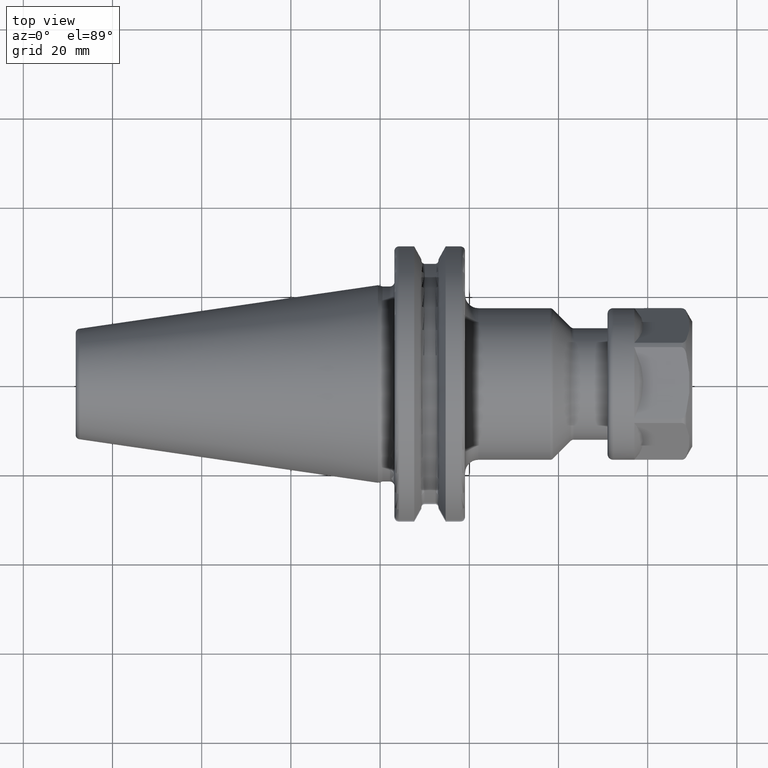
[diagram: clean part render]
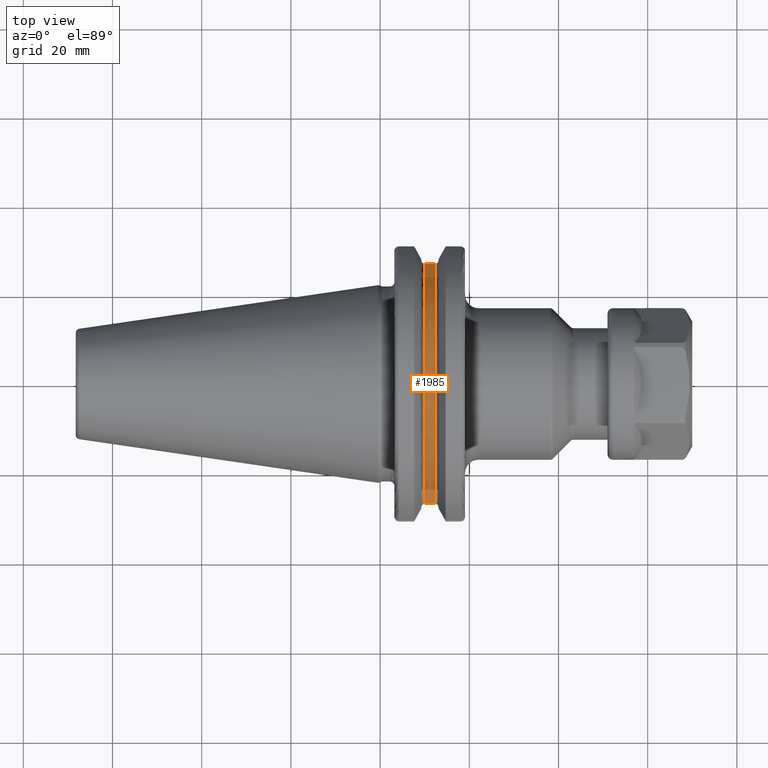
[diagram: same view with one face highlighted and labeled with its STEP entity id]
A machine part, top view. The second image highlights one B-rep face of the part: STEP entity #1985.
In plain terms, the highlighted cylindrical surface (partial cylindrical patch) has radius 28 mm, axis along (1, 0, 0).
Its self-contained STEP definition (entity closure, byte-faithful):
#287=CARTESIAN_POINT('',(1.00125E1,2.680279836137E1,8.1E0));
#307=CARTESIAN_POINT('',(1.00125E1,-2.680279836137E1,8.1E0));
#314=DIRECTION('',(1.E0,0.E0,0.E0));
#315=VECTOR('',#314,2.325E0);
#316=CARTESIAN_POINT('',(1.00125E1,2.680279836137E1,8.1E0));
#317=LINE('',#316,#315);
#318=DIRECTION('',(1.E0,0.E0,0.E0));
#319=VECTOR('',#318,2.325E0);
#320=CARTESIAN_POINT('',(1.00125E1,-2.680279836137E1,8.1E0));
#321=LINE('',#320,#319);
#322=CARTESIAN_POINT('',(1.00125E1,0.E0,0.E0));
#323=DIRECTION('',(1.E0,0.E0,0.E0));
#324=DIRECTION('',(0.E0,9.572427986202E-1,2.892857142857E-1));
#325=AXIS2_PLACEMENT_3D('',#322,#323,#324);
#349=CARTESIAN_POINT('',(1.23375E1,0.E0,0.E0));
#350=DIRECTION('',(1.E0,0.E0,0.E0));
#351=DIRECTION('',(0.E0,9.572427986202E-1,2.892857142857E-1));
#352=AXIS2_PLACEMENT_3D('',#349,#350,#351);
#1360=VERTEX_POINT('',#287);
#1361=VERTEX_POINT('',#307);
#1362=CARTESIAN_POINT('',(1.23375E1,2.680279836137E1,8.1E0));
#1363=VERTEX_POINT('',#1362);
#1364=CARTESIAN_POINT('',(1.23375E1,-2.680279836137E1,8.1E0));
#1365=VERTEX_POINT('',#1364);
#1973=CARTESIAN_POINT('',(7.293041127536E0,0.E0,0.E0));
#1974=DIRECTION('',(1.E0,0.E0,0.E0));
#1975=DIRECTION('',(0.E0,-1.E0,0.E0));
#1976=AXIS2_PLACEMENT_3D('',#1973,#1974,#1975);
#1977=CYLINDRICAL_SURFACE('',#1976,2.8E1);
#1978=ORIENTED_EDGE('',*,*,#1906,.T.);
#1980=ORIENTED_EDGE('',*,*,#1979,.T.);
#1981=ORIENTED_EDGE('',*,*,#1935,.F.);
#1982=ORIENTED_EDGE('',*,*,#1966,.F.);
#1983=EDGE_LOOP('',(#1978,#1980,#1981,#1982));
#1984=FACE_OUTER_BOUND('',#1983,.F.);
#1985=ADVANCED_FACE('',(#1984),#1977,.T.);
#326=CIRCLE('',#325,2.8E1);
#353=CIRCLE('',#352,2.8E1);
#1906=EDGE_CURVE('',#1360,#1363,#317,.T.);
#1935=EDGE_CURVE('',#1361,#1365,#321,.T.);
#1966=EDGE_CURVE('',#1360,#1361,#326,.T.);
#1979=EDGE_CURVE('',#1363,#1365,#353,.T.);